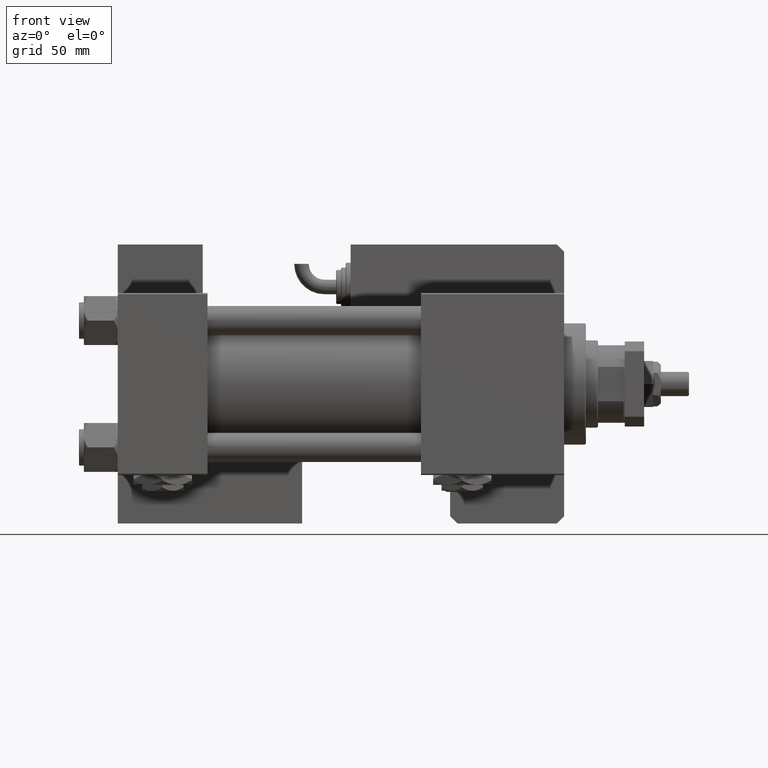
[diagram: clean part render]
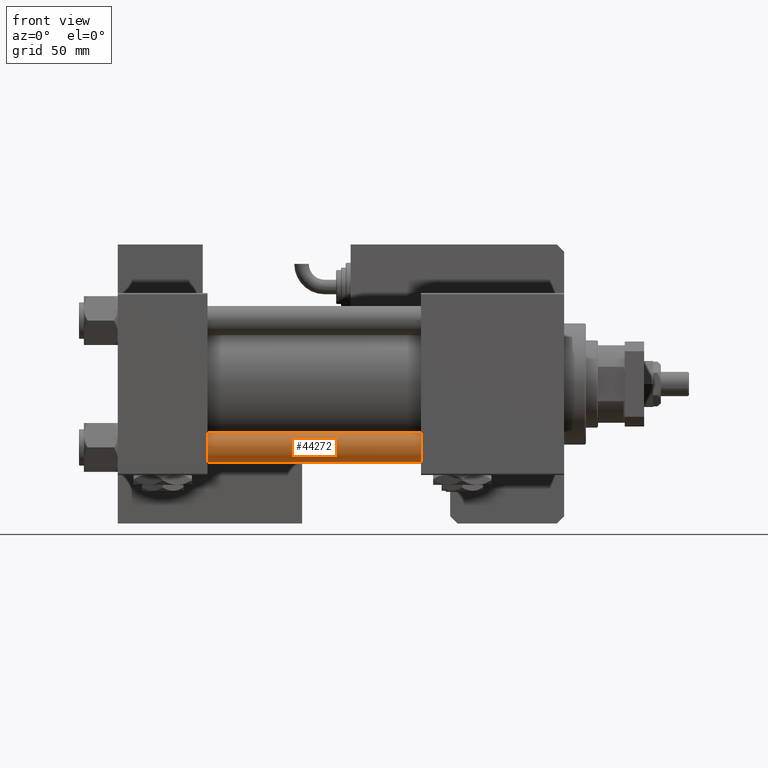
[diagram: same view with one face highlighted and labeled with its STEP entity id]
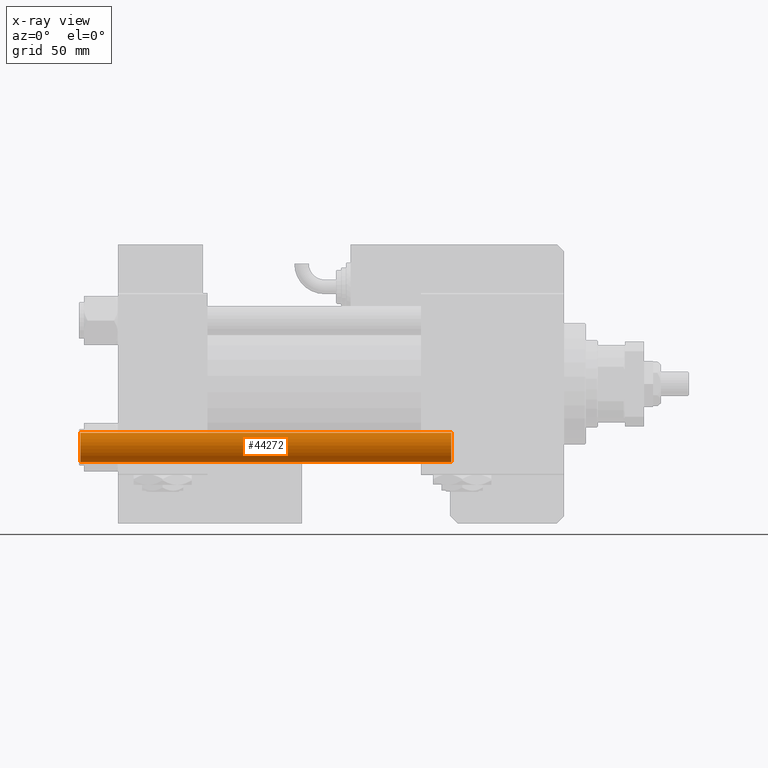
[diagram: x-ray of the same camera — body ghosted, the highlighted face saturated]
A machine part, front view. The second image highlights one B-rep face of the part: STEP entity #44272.
The next image is the same camera in x-ray: the body ghosted, the highlighted face saturated — about 0% of this face is hidden behind the body in this view.
In plain terms, the highlighted cylindrical surface (edge-blend (fillet) strip) has radius 6 mm, axis along (-1, 0, -0).
Its self-contained STEP definition (entity closure, byte-faithful):
#978 = DIRECTION ( 'NONE',  ( -1.000000000000000000, 0.000000000000000000, 0.000000000000000000 ) ) ;
#5099 = CIRCLE ( 'NONE', #26609, 6.000000000000000888 ) ;
#5390 = DIRECTION ( 'NONE',  ( -0.000000000000000000, -0.000000000000000000, -1.000000000000000000 ) ) ;
#7322 = EDGE_CURVE ( 'NONE', #36279, #47921, #36767, .T. ) ;
#7460 = ORIENTED_EDGE ( 'NONE', *, *, #38251, .T. ) ;
#9780 = CARTESIAN_POINT ( 'NONE',  ( 6.000000000000000888, 7.347880794884120722E-16, 154.0000000000000000 ) ) ;
#10309 = CARTESIAN_POINT ( 'NONE',  ( -6.000000000000000888, 0.000000000000000000, 0.5000000000000281997 ) ) ;
#10549 = LINE ( 'NONE', #41055, #47559 ) ;
#13061 = CARTESIAN_POINT ( 'NONE',  ( 6.000000000000000888, 7.347880794884120722E-16, 153.5000000000000000 ) ) ;
#13483 = ORIENTED_EDGE ( 'NONE', *, *, #7322, .T. ) ;
#14594 = DIRECTION ( 'NONE',  ( 1.000000000000000000, 0.000000000000000000, 0.000000000000000000 ) ) ;
#16470 = CARTESIAN_POINT ( 'NONE',  ( 0.000000000000000000, 0.000000000000000000, 0.5000000000000281997 ) ) ;
#18993 = CARTESIAN_POINT ( 'NONE',  ( 0.000000000000000000, 0.000000000000000000, 153.5000000000000000 ) ) ;
#20689 = ORIENTED_EDGE ( 'NONE', *, *, #51463, .T. ) ;
#23213 = CARTESIAN_POINT ( 'NONE',  ( 0.000000000000000000, 0.000000000000000000, 154.0000000000000000 ) ) ;
#26284 = CARTESIAN_POINT ( 'NONE',  ( 6.000000000000000888, 7.347880794884120722E-16, 0.5000000000000281997 ) ) ;
#26609 = AXIS2_PLACEMENT_3D ( 'NONE', #18993, #36885, #14594 ) ;
#27614 = CYLINDRICAL_SURFACE ( 'NONE', #33391, 6.000000000000000888 ) ;
#30245 = DIRECTION ( 'NONE',  ( -0.000000000000000000, -0.000000000000000000, 1.000000000000000000 ) ) ;
#30750 = AXIS2_PLACEMENT_3D ( 'NONE', #16470, #30245, #56352 ) ;
#33391 = AXIS2_PLACEMENT_3D ( 'NONE', #23213, #41134, #978 ) ;
#36279 = VERTEX_POINT ( 'NONE', #13061 ) ;
#36767 = LINE ( 'NONE', #9780, #50376 ) ;
#36885 = DIRECTION ( 'NONE',  ( 0.000000000000000000, 0.000000000000000000, -1.000000000000000000 ) ) ;
#38251 = EDGE_CURVE ( 'NONE', #50476, #36279, #5099, .T. ) ;
#40557 = FACE_OUTER_BOUND ( 'NONE', #54614, .T. ) ;
#41055 = CARTESIAN_POINT ( 'NONE',  ( -6.000000000000000888, 0.000000000000000000, 154.0000000000000000 ) ) ;
#41065 = CIRCLE ( 'NONE', #30750, 6.000000000000000888 ) ;
#41134 = DIRECTION ( 'NONE',  ( -0.000000000000000000, -0.000000000000000000, -1.000000000000000000 ) ) ;
#44272 = ADVANCED_FACE ( 'NONE', ( #40557 ), #27614, .T. ) ;
#47488 = EDGE_CURVE ( 'NONE', #50476, #57625, #10549, .T. ) ;
#47559 = VECTOR ( 'NONE', #55687, 1000.000000000000000 ) ;
#47608 = ORIENTED_EDGE ( 'NONE', *, *, #47488, .F. ) ;
#47921 = VERTEX_POINT ( 'NONE', #26284 ) ;
#50376 = VECTOR ( 'NONE', #5390, 1000.000000000000000 ) ;
#50476 = VERTEX_POINT ( 'NONE', #54590 ) ;
#51463 = EDGE_CURVE ( 'NONE', #47921, #57625, #41065, .T. ) ;
#54590 = CARTESIAN_POINT ( 'NONE',  ( -6.000000000000000888, 0.000000000000000000, 153.5000000000000000 ) ) ;
#54614 = EDGE_LOOP ( 'NONE', ( #7460, #13483, #20689, #47608 ) ) ;
#55687 = DIRECTION ( 'NONE',  ( -0.000000000000000000, -0.000000000000000000, -1.000000000000000000 ) ) ;
#56352 = DIRECTION ( 'NONE',  ( 1.000000000000000000, 0.000000000000000000, 0.000000000000000000 ) ) ;
#57625 = VERTEX_POINT ( 'NONE', #10309 ) ;